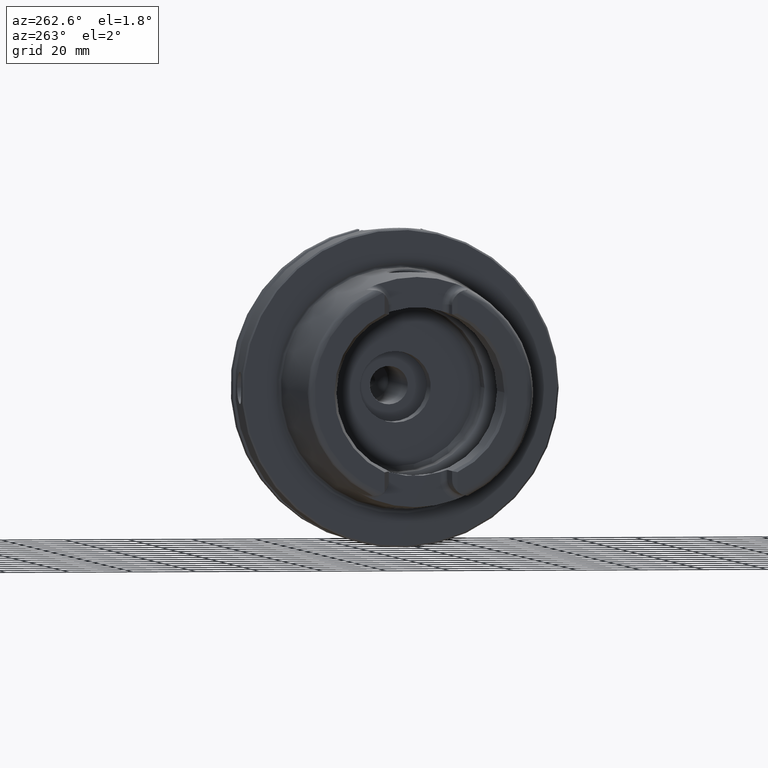
[diagram: clean part render]
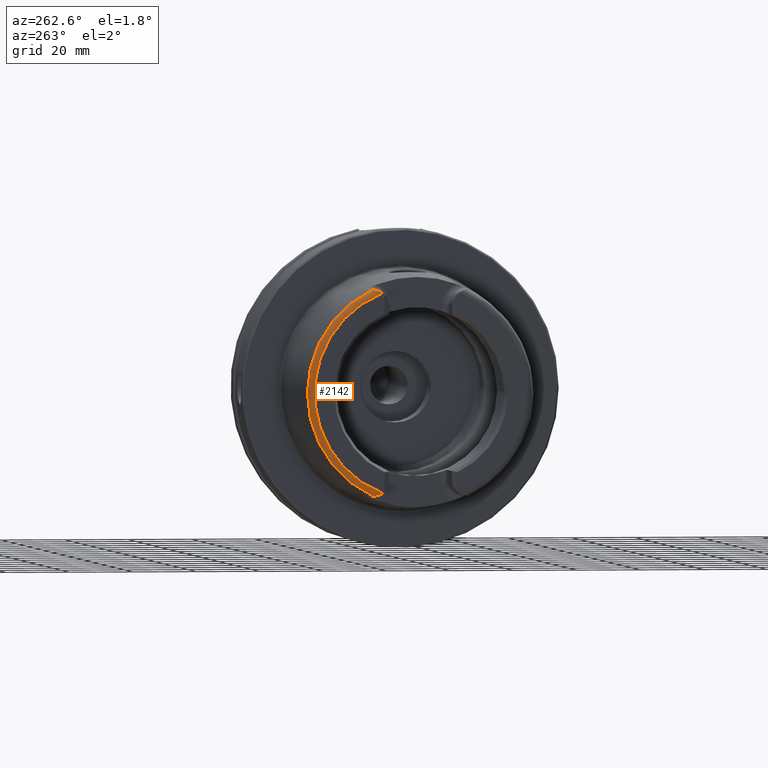
[diagram: same view with one face highlighted and labeled with its STEP entity id]
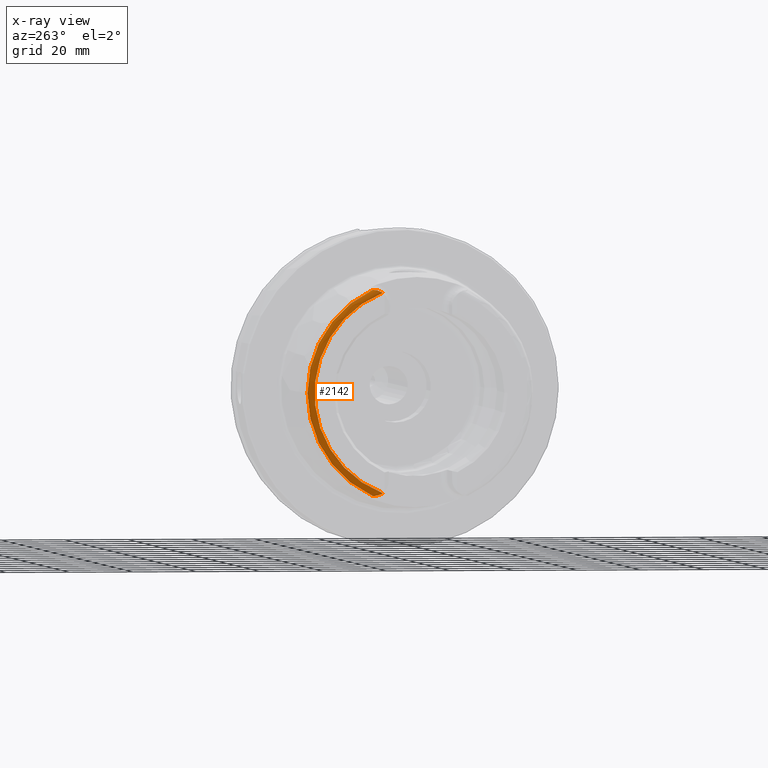
[diagram: x-ray of the same camera — body ghosted, the highlighted face saturated]
A machine part, auxiliary view. The second image highlights one B-rep face of the part: STEP entity #2142.
The next image is the same camera in x-ray: the body ghosted, the highlighted face saturated — about 0% of this face is hidden behind the body in this view.
In plain terms, the highlighted toroidal blend (fillet) surface has major radius 33.6002 mm and minor (blend) radius 2 mm.
Its self-contained STEP definition (entity closure, byte-faithful):
#31=B_SPLINE_CURVE_WITH_KNOTS('',3,(#3259,#3260,#3261,#3262,#3263,#3264,
#3265,#3266,#3267,#3268,#3269,#3270),.UNSPECIFIED.,.F.,.F.,(4,2,2,2,2,4),
(-0.744485085130335,-0.701284148098614,-0.656581713087918,-0.531183195108729,
-0.406814905045398,-0.320767863003946),.UNSPECIFIED.);
#36=B_SPLINE_CURVE_WITH_KNOTS('',3,(#3378,#3379,#3380,#3381,#3382,#3383,
#3384,#3385,#3386,#3387,#3388,#3389),.UNSPECIFIED.,.F.,.F.,(4,2,2,2,2,4),
(-0.33049294128038,-0.267730672592795,-0.15978363726818,-0.0785649842435549,
-0.0319753598823885,-6.79221864813266E-5),.UNSPECIFIED.);
#159=TOROIDAL_SURFACE('',#2407,33.6001839277785,2.);
#312=FACE_OUTER_BOUND('',#446,.T.);
#446=EDGE_LOOP('',(#1902,#1903,#1904,#1905));
#741=CIRCLE('',#2285,35.5976786130245);
#802=CIRCLE('',#2408,33.6001839277785);
#880=VERTEX_POINT('',#3256);
#881=VERTEX_POINT('',#3258);
#906=VERTEX_POINT('',#3368);
#907=VERTEX_POINT('',#3377);
#1110=EDGE_CURVE('',#881,#880,#31,.T.);
#1142=EDGE_CURVE('',#907,#906,#36,.T.);
#1161=EDGE_CURVE('',#881,#906,#741,.T.);
#1333=EDGE_CURVE('',#880,#907,#802,.T.);
#1902=ORIENTED_EDGE('',*,*,#1142,.T.);
#1903=ORIENTED_EDGE('',*,*,#1161,.F.);
#1904=ORIENTED_EDGE('',*,*,#1110,.T.);
#1905=ORIENTED_EDGE('',*,*,#1333,.T.);
#2142=ADVANCED_FACE('',(#312),#159,.T.);
#2285=AXIS2_PLACEMENT_3D('',#3646,#2694,#2695);
#2407=AXIS2_PLACEMENT_3D('',#4577,#2997,#2998);
#2408=AXIS2_PLACEMENT_3D('',#4578,#2999,#3000);
#2694=DIRECTION('center_axis',(1.,0.,0.));
#2695=DIRECTION('ref_axis',(0.,0.,-1.));
#2997=DIRECTION('center_axis',(1.,0.,0.));
#2998=DIRECTION('ref_axis',(0.,0.,-1.));
#2999=DIRECTION('center_axis',(1.,0.,0.));
#3000=DIRECTION('ref_axis',(0.,0.,-1.));
#3256=CARTESIAN_POINT('',(-50.,12.0743049948301,-31.355757348091));
#3258=CARTESIAN_POINT('',(-48.1000748840304,15.0787152148571,-32.2463497175327));
#3259=CARTESIAN_POINT('Ctrl Pts',(-48.1000748840304,15.0787152148571,-32.2463497175327));
#3260=CARTESIAN_POINT('Ctrl Pts',(-48.2105289331959,15.0644723890649,-32.2469009162952));
#3261=CARTESIAN_POINT('Ctrl Pts',(-48.3152849211513,15.0274043790922,-32.2483365520296));
#3262=CARTESIAN_POINT('Ctrl Pts',(-48.5158350355592,14.9227249886344,-32.2501807122049));
#3263=CARTESIAN_POINT('Ctrl Pts',(-48.6114759122293,14.853948633775,-32.2504380099703));
#3264=CARTESIAN_POINT('Ctrl Pts',(-48.9444340259589,14.5699075364914,-32.2439932048825));
#3265=CARTESIAN_POINT('Ctrl Pts',(-49.1873237794489,14.2618237213855,-32.2229124522755));
#3266=CARTESIAN_POINT('Ctrl Pts',(-49.6096022065355,13.5557805634606,-32.0777680620402));
#3267=CARTESIAN_POINT('Ctrl Pts',(-49.7790094341757,13.1775605707035,-31.9575317726829));
#3268=CARTESIAN_POINT('Ctrl Pts',(-49.9573633441756,12.558596693048,-31.6661869684752));
#3269=CARTESIAN_POINT('Ctrl Pts',(-50.,12.3094122367882,-31.5218463066117));
#3270=CARTESIAN_POINT('Ctrl Pts',(-50.,12.0743049948301,-31.355757348091));
#3368=CARTESIAN_POINT('',(-48.1000748840304,15.0787152148571,32.2463497175327));
#3377=CARTESIAN_POINT('',(-50.,12.0743049948301,31.355757348091));
#3378=CARTESIAN_POINT('Ctrl Pts',(-50.,12.0743049948301,31.355757348091));
#3379=CARTESIAN_POINT('Ctrl Pts',(-50.,12.2864160042027,31.5056008677719));
#3380=CARTESIAN_POINT('Ctrl Pts',(-49.965181241452,12.5182840828266,31.6438016135975));
#3381=CARTESIAN_POINT('Ctrl Pts',(-49.780095292634,13.1934814711235,31.9701190766011));
#3382=CARTESIAN_POINT('Ctrl Pts',(-49.5793805506892,13.6220310736955,32.097613465566));
#3383=CARTESIAN_POINT('Ctrl Pts',(-49.170216000735,14.274989330902,32.2194840260055));
#3384=CARTESIAN_POINT('Ctrl Pts',(-48.9762638716764,14.5215824129494,32.2396097025416));
#3385=CARTESIAN_POINT('Ctrl Pts',(-48.6666306582889,14.8133702905837,32.2505591140316));
#3386=CARTESIAN_POINT('Ctrl Pts',(-48.5389792055844,14.9127554064334,32.2504492219699));
#3387=CARTESIAN_POINT('Ctrl Pts',(-48.3058528414878,15.0307034754738,32.2482068363322));
#3388=CARTESIAN_POINT('Ctrl Pts',(-48.2055479344945,15.0651146787529,32.2468760596209));
#3389=CARTESIAN_POINT('Ctrl Pts',(-48.1000748840303,15.0787152148571,32.2463497175327));
#3646=CARTESIAN_POINT('Origin',(-48.1000748840304,0.,0.));
#4577=CARTESIAN_POINT('Origin',(-48.,0.,0.));
#4578=CARTESIAN_POINT('Origin',(-50.,0.,0.));